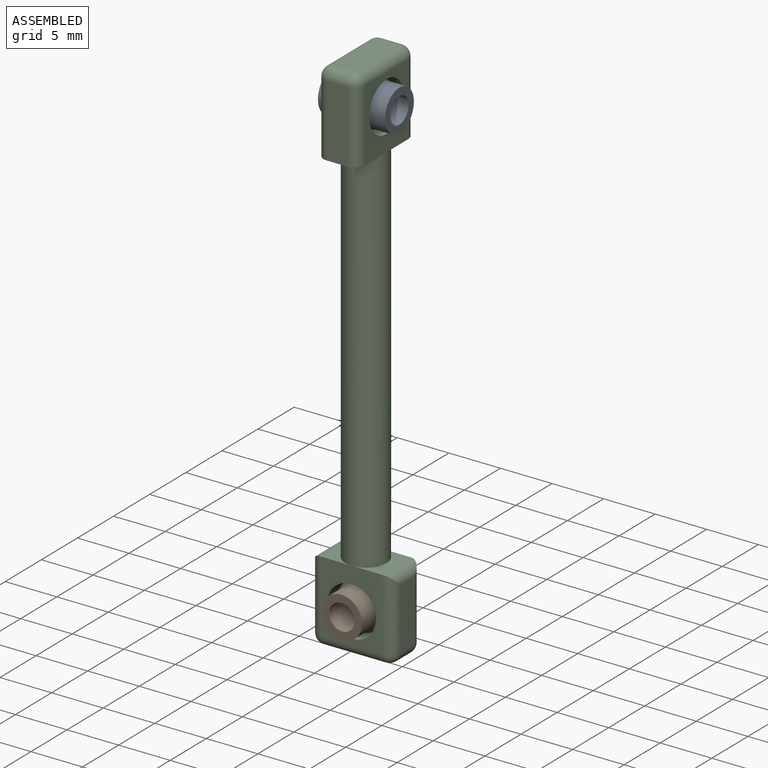
[diagram: assembled view]
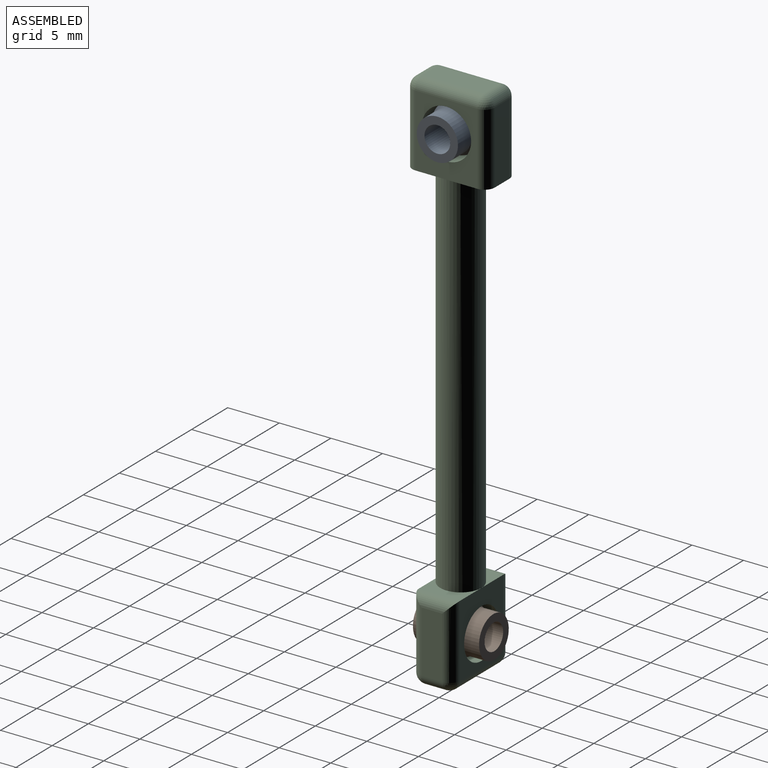
[diagram: assembled view, second angle]
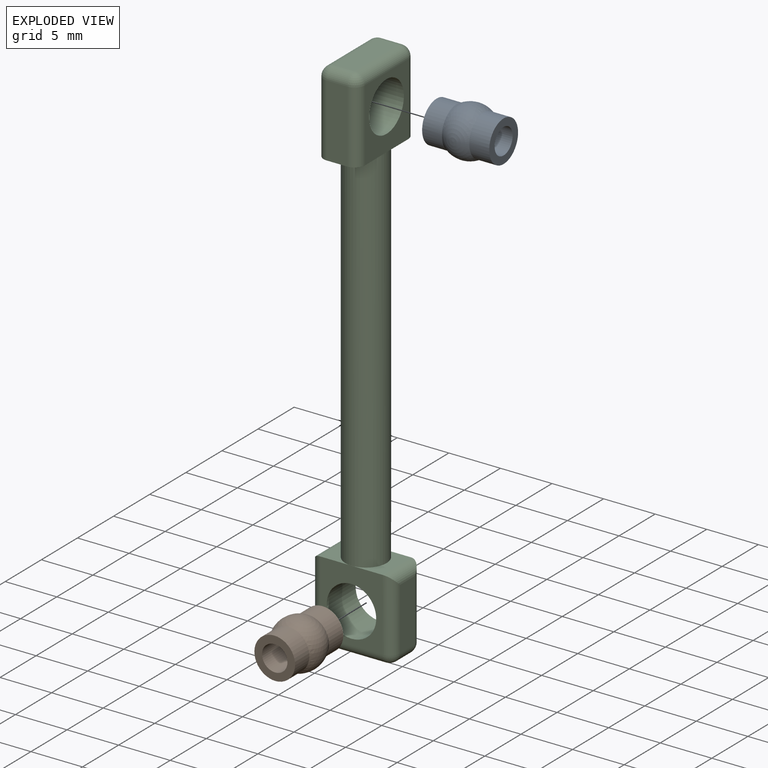
[diagram: exploded view]
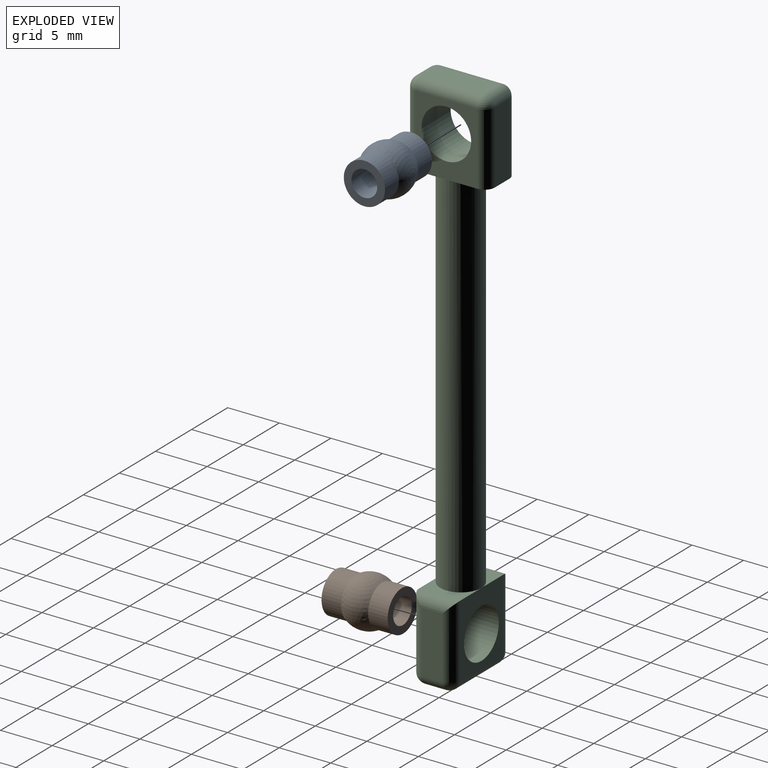
[diagram: exploded view, second angle]
ASSEMBLY  parts=3 mates=2
PART A: 6 faces, bbox 4.8x4.8x6.5 mm
  f0: cylinder r=1.25mm len=6.5mm, axis (0,0,-1), area 51.1mm2, adj f2,f4
  f1: cylinder r=2mm len=4mm, axis (0,0,-1), area 24.2mm2, adj f2,f3
  f2: plane 4x4mm, normal (0,0,-1), area 7.7mm2, adj f0,f1
  f3: sphere r=2.4mm, area 40mm2, adj f1,f5
  f4: plane 4x4mm, normal (0,0,1), area 7.7mm2, adj f0,f5
  f5: cylinder r=2mm len=4mm, axis (0,0,-1), area 24.2mm2, adj f3,f4
PART B: same geometry as A
PART C: 43 faces, bbox 8x8x52 mm
  f0: cylinder r=2mm len=36mm, axis (0,0,-1), area 452.4mm2, adj f1,f4,f8,f9
  f1: plane 4x4mm, normal (0,0,-1), area 9.3mm2, adj f0,f5,f6,f7,f15,f16
  f2: plane 6x2mm, normal (0,0,1), area 12mm2, adj f17,f20,f23,f26
  f3: plane 7x2mm, normal (0,-1,0), area 14mm2, adj f4,f21,f22,f26
  f4: plane 4x4mm, normal (0,0,-1), area 9.3mm2, adj f0,f3,f6,f7,f21,f22
  f5: plane 7x2mm, normal (0,1,0), area 14mm2, adj f1,f15,f16,f17
  f6: plane 7x6mm, normal (1,0,0), area 23.9mm2, adj f1,f4,f15,f20,f21,f42
  f7: plane 7x6mm, normal (-1,0,0), area 23.9mm2, adj f1,f4,f16,f22,f23,f42
  f8: plane 4x3mm, normal (0,0,1), area 5.7mm2, adj f0,f10,f12,f33
  f9: plane 4x3mm, normal (0,0,1), area 5.7mm2, adj f0,f10,f12,f30
  f10: plane 7x6mm, normal (0,-1,0), area 23.9mm2, adj f8,f9,f34,f37,f40,f41
  f11: plane 6x2mm, normal (0,0,-1), area 12mm2, adj f28,f35,f36,f40
  f12: plane 7x6mm, normal (0,1,0), area 23.9mm2, adj f8,f9,f27,f28,f29,f41
  f13: plane 6x2mm, normal (1,0,0), area 12mm2, adj f27,f30,f34,f35
  f14: plane 6x2mm, normal (-1,0,0), area 12mm2, adj f29,f33,f36,f37
  f15: cylinder r=1mm len=7mm, axis (0,0,-1), area 11mm2, adj f1,f5,f6,f18
  f16: cylinder r=1mm len=7mm, axis (0,0,1), area 11mm2, adj f1,f5,f7,f19
  f17: cylinder r=1mm len=2mm, axis (1,0,0), area 3.1mm2, adj f2,f5,f18,f19
  f18: sphere r=1mm, area 1.6mm2, adj f15,f17,f20
  f19: sphere r=1mm, area 1.6mm2, adj f16,f17,f23
  f20: cylinder r=1mm len=6mm, axis (0,1,0), area 9.4mm2, adj f2,f6,f18,f24
  f21: cylinder r=1mm len=7mm, axis (0,0,1), area 11mm2, adj f3,f4,f6,f24
  f22: cylinder r=1mm len=7mm, axis (0,0,-1), area 11mm2, adj f3,f4,f7,f25
  f23: cylinder r=1mm len=6mm, axis (0,-1,0), area 9.4mm2, adj f2,f7,f19,f25
  f24: sphere r=1mm, area 1.6mm2, adj f20,f21,f26
  f25: sphere r=1mm, area 1.6mm2, adj f22,f23,f26
  f26: cylinder r=1mm len=2mm, axis (1,0,0), area 3.1mm2, adj f2,f3,f24,f25
  f27: cylinder r=1mm len=7mm, axis (0,0,-1), area 10.4mm2, adj f12,f13,f30,f31
  f28: cylinder r=1mm len=6mm, axis (1,0,0), area 9.4mm2, adj f11,f12,f31,f32
  f29: cylinder r=1mm len=7mm, axis (0,0,1), area 10.4mm2, adj f12,f14,f32,f33
  f30: cylinder r=1mm len=4mm, axis (0,1,0), area 5.1mm2, adj f9,f13,f27,f34
  f31: sphere r=1mm, area 1.6mm2, adj f27,f28,f35
  f32: sphere r=1mm, area 1.6mm2, adj f28,f29,f36
  f33: cylinder r=1mm len=4mm, axis (0,-1,0), area 5.1mm2, adj f8,f14,f29,f37
  f34: cylinder r=1mm len=7mm, axis (0,0,1), area 10.4mm2, adj f10,f13,f30,f38
  f35: cylinder r=1mm len=2mm, axis (0,-1,0), area 3.1mm2, adj f11,f13,f31,f38
  f36: cylinder r=1mm len=2mm, axis (0,1,0), area 3.1mm2, adj f11,f14,f32,f39
  f37: cylinder r=1mm len=7mm, axis (0,0,-1), area 10.4mm2, adj f10,f14,f33,f39
  f38: sphere r=1mm, area 1.6mm2, adj f34,f35,f40
  f39: sphere r=1mm, area 1.6mm2, adj f36,f37,f40
  f40: cylinder r=1mm len=6mm, axis (-1,0,0), area 9.4mm2, adj f10,f11,f38,f39
  f41: cylinder r=2.4mm len=4.8mm, axis (0,1,0), area 60.3mm2, adj f10,f12
  f42: cylinder r=2.4mm len=4.8mm, axis (-1,0,0), area 60.3mm2, adj f6,f7
PLACE A rot(axis=(0,-1,0),90deg) t=(-8.36,-0.24,28.98)mm
PLACE B rot(axis=(0.99,0.08,-0.1),91.7deg) t=(-8.36,-0.24,-15.02)mm
PLACE C t=(-8.36,-0.24,6.98)mm fixed
MATE ball A.f0 <-> C.f42  axis (-1,0,0) through (-8.36,-0.24,28.98)mm
MATE ball B.f0 <-> C.f41  axis (-0.02,-1,-0.02) through (-8.36,-0.24,-15.02)mm
